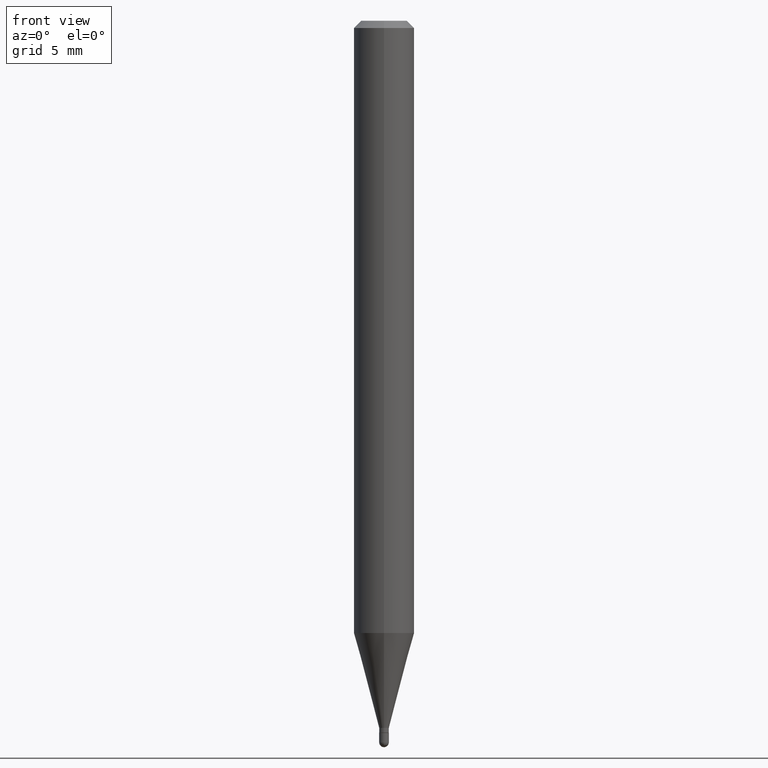
[diagram: clean part render]
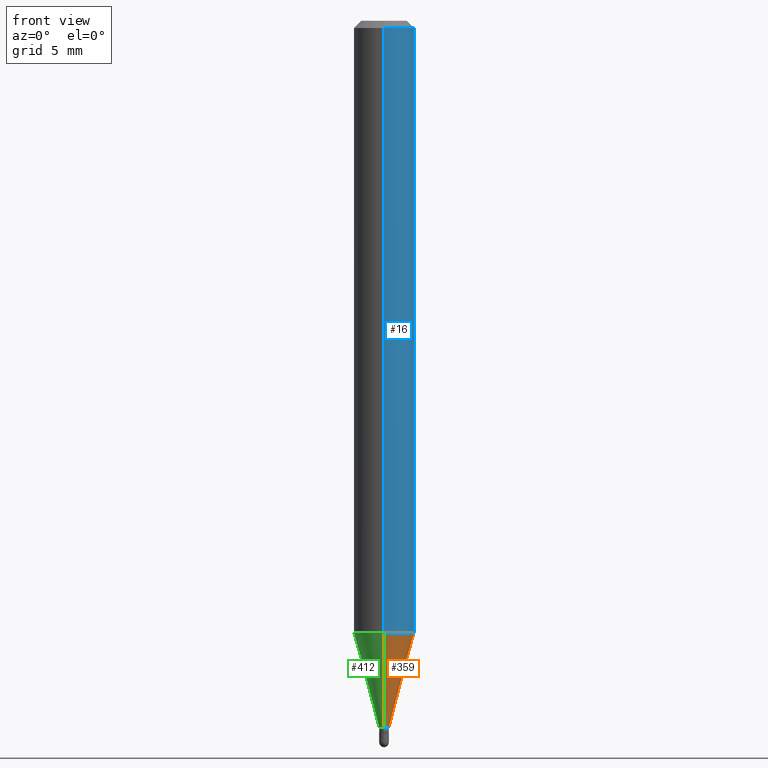
[diagram: same view with three faces highlighted in distinct colors, each labeled with its STEP entity id]
A machine part, front view with three faces highlighted in distinct colors.
Their STEP definitions:

[orange] entity #359 — the highlighted conical surface has half-angle 15 deg.
#6 = CARTESIAN_POINT ( 'NONE',  ( 3.570405850176324342E-29, -5.097532118508263472E-15, -1.459999999999999964 ) ) ;
#11 = DIRECTION ( 'NONE',  ( -1.807323732225329745E-15, -0.2588190451025181305, 0.9659258262890689783 ) ) ;
#13 = DIRECTION ( 'NONE',  ( -2.445483459024879606E-29, 3.491460355142645846E-15, 1.000000000000000000 ) ) ;
#15 = AXIS2_PLACEMENT_3D ( 'NONE', #221, #13, #104 ) ;
#39 = ORIENTED_EDGE ( 'NONE', *, *, #472, .T. ) ;
#50 = CARTESIAN_POINT ( 'NONE',  ( 3.091255752973442998E-29, -4.413440978013010846E-15, -1.264067332602634375 ) ) ;
#74 = VERTEX_POINT ( 'NONE', #316 ) ;
#76 = CARTESIAN_POINT ( 'NONE',  ( 7.105427357604516135E-17, 0.009999999999994827263, -1.459999999999999964 ) ) ;
#104 = DIRECTION ( 'NONE',  ( -6.982962677686265922E-15, -1.000000000000000000, 0.000000000000000000 ) ) ;
#115 = LINE ( 'NONE', #76, #410 ) ;
#137 = AXIS2_PLACEMENT_3D ( 'NONE', #6, #200, #321 ) ;
#156 = VERTEX_POINT ( 'NONE', #439 ) ;
#160 = EDGE_CURVE ( 'NONE', #198, #74, #436, .T. ) ;
#167 = DIRECTION ( 'NONE',  ( -6.982962677686265922E-15, -1.000000000000000000, 4.370956789862821150E-15 ) ) ;
#178 = CONICAL_SURFACE ( 'NONE', #15, 0.009999999999999923880, 0.2617993877991502405 ) ;
#180 = EDGE_CURVE ( 'NONE', #274, #156, #303, .T. ) ;
#198 = VERTEX_POINT ( 'NONE', #283 ) ;
#200 = DIRECTION ( 'NONE',  ( -2.445483459024879606E-29, 3.491460355142645846E-15, 1.000000000000000000 ) ) ;
#221 = CARTESIAN_POINT ( 'NONE',  ( 3.570405850176324342E-29, -5.097532118508263472E-15, -1.459999999999999964 ) ) ;
#274 = VERTEX_POINT ( 'NONE', #415 ) ;
#282 = VECTOR ( 'NONE', #11, 39.37007874015748143 ) ;
#283 = CARTESIAN_POINT ( 'NONE',  ( -4.364351673553607559E-16, -0.06250000000000441314, -1.264067332602633931 ) ) ;
#303 = CIRCLE ( 'NONE', #137, 0.009999999999999923880 ) ;
#310 = DIRECTION ( 'NONE',  ( 1.839019923739599921E-15, 0.2588190451025249028, 0.9659258262890670910 ) ) ;
#311 = ORIENTED_EDGE ( 'NONE', *, *, #160, .F. ) ;
#316 = CARTESIAN_POINT ( 'NONE',  ( 4.440892098500933817E-16, 0.06249999999999558686, -1.264067332602634597 ) ) ;
#321 = DIRECTION ( 'NONE',  ( -6.982962677686265922E-15, -1.000000000000000000, 0.000000000000000000 ) ) ;
#331 = EDGE_CURVE ( 'NONE', #274, #198, #335, .T. ) ;
#335 = LINE ( 'NONE', #486, #282 ) ;
#349 = ORIENTED_EDGE ( 'NONE', *, *, #331, .F. ) ;
#359 = ADVANCED_FACE ( 'NONE', ( #413 ), #178, .T. ) ;
#386 = EDGE_LOOP ( 'NONE', ( #498, #39, #311, #349 ) ) ;
#410 = VECTOR ( 'NONE', #310, 39.37007874015748143 ) ;
#413 = FACE_OUTER_BOUND ( 'NONE', #386, .T. ) ;
#415 = CARTESIAN_POINT ( 'NONE',  ( -6.982962677682643127E-17, -0.01000000000000502050, -1.459999999999999964 ) ) ;
#436 = CIRCLE ( 'NONE', #477, 0.06250000000000000000 ) ;
#439 = CARTESIAN_POINT ( 'NONE',  ( 2.575717417130694811E-16, 0.009999999999994827263, -1.459999999999999964 ) ) ;
#445 = DIRECTION ( 'NONE',  ( -2.445483459024879606E-29, 3.491460355142645846E-15, 1.000000000000000000 ) ) ;
#472 = EDGE_CURVE ( 'NONE', #156, #74, #115, .T. ) ;
#477 = AXIS2_PLACEMENT_3D ( 'NONE', #50, #445, #167 ) ;
#486 = CARTESIAN_POINT ( 'NONE',  ( -6.982962677682643127E-17, -0.01000000000000502050, -1.459999999999999964 ) ) ;
#498 = ORIENTED_EDGE ( 'NONE', *, *, #180, .T. ) ;

[blue] entity #16 — the highlighted cylindrical surface (edge-blend (fillet) strip) has radius 1.5875 mm, axis along (-0, 0, 1).
#4 = DIRECTION ( 'NONE',  ( -2.445483459024879606E-29, 3.491460355142645846E-15, 1.000000000000000000 ) ) ;
#16 = ADVANCED_FACE ( 'NONE', ( #77 ), #34, .T. ) ;
#21 = DIRECTION ( 'NONE',  ( -6.982962677686265922E-15, -1.000000000000000000, 3.483106191921935554E-15 ) ) ;
#23 = VERTEX_POINT ( 'NONE', #228 ) ;
#28 = ORIENTED_EDGE ( 'NONE', *, *, #160, .T. ) ;
#34 = CYLINDRICAL_SURFACE ( 'NONE', #424, 0.06250000000000000000 ) ;
#41 = ORIENTED_EDGE ( 'NONE', *, *, #153, .F. ) ;
#50 = CARTESIAN_POINT ( 'NONE',  ( 3.091255752973442998E-29, -4.413440978013010846E-15, -1.264067332602634375 ) ) ;
#66 = CARTESIAN_POINT ( 'NONE',  ( 0.000000000000000000, 0.000000000000000000, 0.000000000000000000 ) ) ;
#70 = ORIENTED_EDGE ( 'NONE', *, *, #395, .F. ) ;
#74 = VERTEX_POINT ( 'NONE', #316 ) ;
#77 = FACE_OUTER_BOUND ( 'NONE', #201, .T. ) ;
#91 = AXIS2_PLACEMENT_3D ( 'NONE', #377, #361, #21 ) ;
#153 = EDGE_CURVE ( 'NONE', #198, #23, #288, .T. ) ;
#160 = EDGE_CURVE ( 'NONE', #198, #74, #436, .T. ) ;
#167 = DIRECTION ( 'NONE',  ( -6.982962677686265922E-15, -1.000000000000000000, 4.370956789862821150E-15 ) ) ;
#171 = VECTOR ( 'NONE', #4, 39.37007874015748143 ) ;
#190 = DIRECTION ( 'NONE',  ( -2.445483459024879606E-29, 3.491460355142645846E-15, 1.000000000000000000 ) ) ;
#198 = VERTEX_POINT ( 'NONE', #283 ) ;
#201 = EDGE_LOOP ( 'NONE', ( #28, #382, #70, #41 ) ) ;
#226 = DIRECTION ( 'NONE',  ( -6.982962677686265922E-15, -1.000000000000000000, 3.491460355142645846E-15 ) ) ;
#228 = CARTESIAN_POINT ( 'NONE',  ( -4.364351673553912750E-16, -0.06250000000000005551, -0.01499999999999954321 ) ) ;
#232 = VECTOR ( 'NONE', #190, 39.37007874015748143 ) ;
#283 = CARTESIAN_POINT ( 'NONE',  ( -4.364351673553607559E-16, -0.06250000000000441314, -1.264067332602633931 ) ) ;
#288 = LINE ( 'NONE', #484, #171 ) ;
#316 = CARTESIAN_POINT ( 'NONE',  ( 4.440892098500933817E-16, 0.06249999999999558686, -1.264067332602634597 ) ) ;
#360 = VERTEX_POINT ( 'NONE', #383 ) ;
#361 = DIRECTION ( 'NONE',  ( -2.445483459024879606E-29, 3.491460355142645846E-15, 1.000000000000000000 ) ) ;
#377 = CARTESIAN_POINT ( 'NONE',  ( 3.668225188537261132E-31, -5.237190532713885175E-17, -0.01499999999999976179 ) ) ;
#382 = ORIENTED_EDGE ( 'NONE', *, *, #485, .T. ) ;
#383 = CARTESIAN_POINT ( 'NONE',  ( 4.440892098500936776E-16, 0.06249999999999993755, -0.01499999999999997863 ) ) ;
#395 = EDGE_CURVE ( 'NONE', #23, #360, #468, .T. ) ;
#420 = CARTESIAN_POINT ( 'NONE',  ( 4.440892098500625669E-16, 0.06250000000000000000, -2.182162721964153654E-16 ) ) ;
#424 = AXIS2_PLACEMENT_3D ( 'NONE', #66, #504, #226 ) ;
#436 = CIRCLE ( 'NONE', #477, 0.06250000000000000000 ) ;
#445 = DIRECTION ( 'NONE',  ( -2.445483459024879606E-29, 3.491460355142645846E-15, 1.000000000000000000 ) ) ;
#464 = LINE ( 'NONE', #420, #232 ) ;
#468 = CIRCLE ( 'NONE', #91, 0.06250000000000000000 ) ;
#477 = AXIS2_PLACEMENT_3D ( 'NONE', #50, #445, #167 ) ;
#484 = CARTESIAN_POINT ( 'NONE',  ( -4.364351673553916201E-16, -0.06250000000000000000, 2.182162721964153654E-16 ) ) ;
#485 = EDGE_CURVE ( 'NONE', #74, #360, #464, .T. ) ;
#504 = DIRECTION ( 'NONE',  ( -2.445483459024879606E-29, 3.491460355142645846E-15, 1.000000000000000000 ) ) ;

[green] entity #412 — the highlighted conical surface has half-angle 15 deg.
#11 = DIRECTION ( 'NONE',  ( -1.807323732225329745E-15, -0.2588190451025181305, 0.9659258262890689783 ) ) ;
#26 = FACE_OUTER_BOUND ( 'NONE', #235, .T. ) ;
#37 = CONICAL_SURFACE ( 'NONE', #418, 0.009999999999999923880, 0.2617993877991502405 ) ;
#61 = AXIS2_PLACEMENT_3D ( 'NONE', #342, #65, #110 ) ;
#65 = DIRECTION ( 'NONE',  ( -2.445483459024879606E-29, 3.491460355142645846E-15, 1.000000000000000000 ) ) ;
#73 = ORIENTED_EDGE ( 'NONE', *, *, #491, .F. ) ;
#74 = VERTEX_POINT ( 'NONE', #316 ) ;
#76 = CARTESIAN_POINT ( 'NONE',  ( 7.105427357604516135E-17, 0.009999999999994827263, -1.459999999999999964 ) ) ;
#110 = DIRECTION ( 'NONE',  ( -6.982962677686265922E-15, -1.000000000000000000, 4.370956789862821150E-15 ) ) ;
#115 = LINE ( 'NONE', #76, #410 ) ;
#131 = CARTESIAN_POINT ( 'NONE',  ( 3.570405850176324342E-29, -5.097532118508263472E-15, -1.459999999999999964 ) ) ;
#140 = DIRECTION ( 'NONE',  ( -6.982962677686265922E-15, -1.000000000000000000, 0.000000000000000000 ) ) ;
#156 = VERTEX_POINT ( 'NONE', #439 ) ;
#187 = CARTESIAN_POINT ( 'NONE',  ( 3.570405850176324342E-29, -5.097532118508263472E-15, -1.459999999999999964 ) ) ;
#198 = VERTEX_POINT ( 'NONE', #283 ) ;
#199 = EDGE_CURVE ( 'NONE', #156, #274, #409, .T. ) ;
#227 = DIRECTION ( 'NONE',  ( -2.445483459024879606E-29, 3.491460355142645846E-15, 1.000000000000000000 ) ) ;
#235 = EDGE_LOOP ( 'NONE', ( #284, #433, #375, #73 ) ) ;
#264 = DIRECTION ( 'NONE',  ( -6.982962677686265922E-15, -1.000000000000000000, 0.000000000000000000 ) ) ;
#274 = VERTEX_POINT ( 'NONE', #415 ) ;
#282 = VECTOR ( 'NONE', #11, 39.37007874015748143 ) ;
#283 = CARTESIAN_POINT ( 'NONE',  ( -4.364351673553607559E-16, -0.06250000000000441314, -1.264067332602633931 ) ) ;
#284 = ORIENTED_EDGE ( 'NONE', *, *, #472, .F. ) ;
#310 = DIRECTION ( 'NONE',  ( 1.839019923739599921E-15, 0.2588190451025249028, 0.9659258262890670910 ) ) ;
#316 = CARTESIAN_POINT ( 'NONE',  ( 4.440892098500933817E-16, 0.06249999999999558686, -1.264067332602634597 ) ) ;
#331 = EDGE_CURVE ( 'NONE', #274, #198, #335, .T. ) ;
#335 = LINE ( 'NONE', #486, #282 ) ;
#342 = CARTESIAN_POINT ( 'NONE',  ( 3.091255752973442998E-29, -4.413440978013010846E-15, -1.264067332602634375 ) ) ;
#375 = ORIENTED_EDGE ( 'NONE', *, *, #331, .T. ) ;
#400 = AXIS2_PLACEMENT_3D ( 'NONE', #131, #489, #140 ) ;
#409 = CIRCLE ( 'NONE', #400, 0.009999999999999923880 ) ;
#410 = VECTOR ( 'NONE', #310, 39.37007874015748143 ) ;
#412 = ADVANCED_FACE ( 'NONE', ( #26 ), #37, .T. ) ;
#415 = CARTESIAN_POINT ( 'NONE',  ( -6.982962677682643127E-17, -0.01000000000000502050, -1.459999999999999964 ) ) ;
#418 = AXIS2_PLACEMENT_3D ( 'NONE', #187, #227, #264 ) ;
#433 = ORIENTED_EDGE ( 'NONE', *, *, #199, .T. ) ;
#439 = CARTESIAN_POINT ( 'NONE',  ( 2.575717417130694811E-16, 0.009999999999994827263, -1.459999999999999964 ) ) ;
#444 = CIRCLE ( 'NONE', #61, 0.06250000000000000000 ) ;
#472 = EDGE_CURVE ( 'NONE', #156, #74, #115, .T. ) ;
#486 = CARTESIAN_POINT ( 'NONE',  ( -6.982962677682643127E-17, -0.01000000000000502050, -1.459999999999999964 ) ) ;
#489 = DIRECTION ( 'NONE',  ( -2.445483459024879606E-29, 3.491460355142645846E-15, 1.000000000000000000 ) ) ;
#491 = EDGE_CURVE ( 'NONE', #74, #198, #444, .T. ) ;